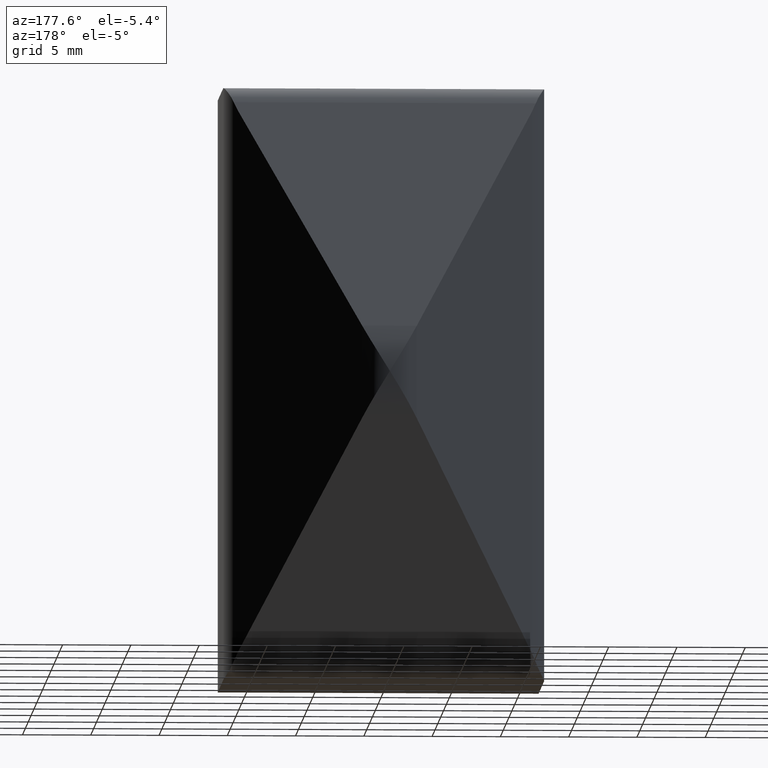
[diagram: clean part render]
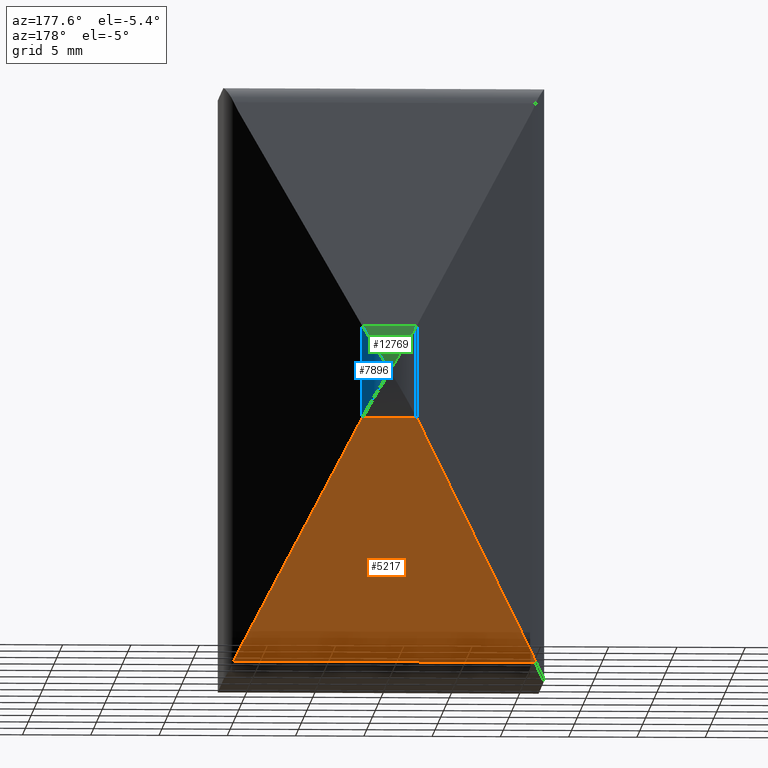
[diagram: same view with three faces highlighted in distinct colors, each labeled with its STEP entity id]
A machine part, auxiliary view with three faces highlighted in distinct colors.
Their STEP definitions:

[orange] entity #5217 — the highlighted planar face has unit normal (-0, 0.903, -0.4296).
#255 = VERTEX_POINT ( 'NONE', #1041 ) ;
#387 = DIRECTION ( 'NONE',  ( 0.4323533876262485309, -0.3873917184031406835, -0.8142470170168071286 ) ) ;
#607 = CARTESIAN_POINT ( 'NONE',  ( 10.75196038653900388, 11.89425061063080058, -19.87040150168149566 ) ) ;
#786 = LINE ( 'NONE', #9476, #9072 ) ;
#935 = EDGE_CURVE ( 'NONE', #13829, #255, #11167, .T. ) ;
#1041 = CARTESIAN_POINT ( 'NONE',  ( 10.75196038653900388, 11.89425061063080058, -19.87040150168149566 ) ) ;
#1139 = ORIENTED_EDGE ( 'NONE', *, *, #13612, .F. ) ;
#1680 = ORIENTED_EDGE ( 'NONE', *, *, #2969, .T. ) ;
#2867 = CARTESIAN_POINT ( 'NONE',  ( -11.05863124245042428, 11.57571989516164024, -20.53991164497543664 ) ) ;
#2969 = EDGE_CURVE ( 'NONE', #9142, #13829, #10925, .T. ) ;
#3164 = CARTESIAN_POINT ( 'NONE',  ( 2.001960386538957692, 19.73431300643590092, -3.391609840041818646 ) ) ;
#3308 = CARTESIAN_POINT ( 'NONE',  ( -11.05863124245042428, 11.57571989516164024, -20.53991164497543664 ) ) ;
#3565 = PLANE ( 'NONE',  #8973 ) ;
#4053 = DIRECTION ( 'NONE',  ( 0.4323533876262476427, 0.3873917184031417382, 0.8142470170168070176 ) ) ;
#4703 = EDGE_CURVE ( 'NONE', #11074, #10413, #9159, .T. ) ;
#5217 = ADVANCED_FACE ( 'NONE', ( #8211 ), #3565, .T. ) ;
#5591 = CARTESIAN_POINT ( 'NONE',  ( -10.96433925110757812, 11.68934733506094226, -20.30108154202269333 ) ) ;
#6569 = CARTESIAN_POINT ( 'NONE',  ( -10.75196038653899322, 11.89425061063079880, -19.87040150168144947 ) ) ;
#6720 = CARTESIAN_POINT ( 'NONE',  ( 3.900187984968730870, 25.02268003522675599, 7.723849973690928294 ) ) ;
#7445 = VECTOR ( 'NONE', #13193, 1000.000000000000000 ) ;
#7656 = EDGE_CURVE ( 'NONE', #10413, #9142, #15029, .T. ) ;
#8211 = FACE_OUTER_BOUND ( 'NONE', #14186, .T. ) ;
#8538 = VECTOR ( 'NONE', #4053, 1000.000000000000114 ) ;
#8973 = AXIS2_PLACEMENT_3D ( 'NONE', #13977, #9933, #12576 ) ;
#8997 = ORIENTED_EDGE ( 'NONE', *, *, #7656, .T. ) ;
#9072 = VECTOR ( 'NONE', #10614, 1000.000000000000000 ) ;
#9142 = VERTEX_POINT ( 'NONE', #15264 ) ;
#9159 =( BOUNDED_CURVE ( )  B_SPLINE_CURVE ( 3, ( #2867, #5591, #15985, #14582 ),
 .UNSPECIFIED., .F., .F. ) 
 B_SPLINE_CURVE_WITH_KNOTS ( ( 4, 4 ),
 ( 2.263466273850775590, 2.410987941729143103 ),
 .UNSPECIFIED. ) 
 CURVE ( )  GEOMETRIC_REPRESENTATION_ITEM ( )  RATIONAL_B_SPLINE_CURVE ( ( 1.000000000000000000, 0.9981872685538730749, 0.9981872685538730749, 1.000000000000000000 ) ) 
 REPRESENTATION_ITEM ( '' )  );
#9476 = CARTESIAN_POINT ( 'NONE',  ( -31.75000000000000000, 11.57571989516161359, -20.53991164497543664 ) ) ;
#9933 = DIRECTION ( 'NONE',  ( -1.236707980798851141E-15, 0.9030089634725728676, -0.4296217078875201878 ) ) ;
#10413 = VERTEX_POINT ( 'NONE', #6569 ) ;
#10614 = DIRECTION ( 'NONE',  ( 1.000000000000000000, 1.369541201499284725E-15, -0.000000000000000000 ) ) ;
#10925 = LINE ( 'NONE', #13302, #7445 ) ;
#11074 = VERTEX_POINT ( 'NONE', #3308 ) ;
#11167 = LINE ( 'NONE', #16253, #12148 ) ;
#11642 =( BOUNDED_CURVE ( )  B_SPLINE_CURVE ( 3, ( #607, #12246, #13528, #12573 ),
 .UNSPECIFIED., .F., .F. ) 
 B_SPLINE_CURVE_WITH_KNOTS ( ( 4, 4 ),
 ( 3.872197365450441353, 4.019719033328795987 ),
 .UNSPECIFIED. ) 
 CURVE ( )  GEOMETRIC_REPRESENTATION_ITEM ( )  RATIONAL_B_SPLINE_CURVE ( ( 1.000000000000000000, 0.9981872685538732970, 0.9981872685538732970, 1.000000000000000000 ) ) 
 REPRESENTATION_ITEM ( '' )  );
#11803 = ORIENTED_EDGE ( 'NONE', *, *, #4703, .T. ) ;
#12083 = EDGE_CURVE ( 'NONE', #255, #14320, #11642, .T. ) ;
#12148 = VECTOR ( 'NONE', #387, 1000.000000000000114 ) ;
#12217 = ORIENTED_EDGE ( 'NONE', *, *, #935, .T. ) ;
#12246 = CARTESIAN_POINT ( 'NONE',  ( 10.86192999198604170, 11.79571705996257869, -20.07750621222717768 ) ) ;
#12573 = CARTESIAN_POINT ( 'NONE',  ( 11.05863124245040297, 11.57571989516167221, -20.53991164497543664 ) ) ;
#12576 = DIRECTION ( 'NONE',  ( 0.000000000000000000, 0.4296217078875201323, 0.9030089634725727565 ) ) ;
#13193 = DIRECTION ( 'NONE',  ( 1.000000000000000000, 1.369541201499284725E-15, -0.000000000000000000 ) ) ;
#13302 = CARTESIAN_POINT ( 'NONE',  ( -31.75000000000001421, 19.73431300643585473, -3.391609840041818646 ) ) ;
#13528 = CARTESIAN_POINT ( 'NONE',  ( 10.96433925110756036, 11.68934733506096002, -20.30108154202271820 ) ) ;
#13612 = EDGE_CURVE ( 'NONE', #11074, #14320, #786, .T. ) ;
#13829 = VERTEX_POINT ( 'NONE', #3164 ) ;
#13965 = ORIENTED_EDGE ( 'NONE', *, *, #12083, .T. ) ;
#13977 = CARTESIAN_POINT ( 'NONE',  ( -31.75000000000001421, 17.40763857469484677, -8.281976942941218667 ) ) ;
#14186 = EDGE_LOOP ( 'NONE', ( #13965, #1139, #11803, #8997, #1680, #12217 ) ) ;
#14320 = VERTEX_POINT ( 'NONE', #16097 ) ;
#14582 = CARTESIAN_POINT ( 'NONE',  ( -10.75196038653899322, 11.89425061063079880, -19.87040150168144947 ) ) ;
#15029 = LINE ( 'NONE', #6720, #8538 ) ;
#15264 = CARTESIAN_POINT ( 'NONE',  ( -2.001960386538999437, 19.73431300643589736, -3.391609840041818646 ) ) ;
#15985 = CARTESIAN_POINT ( 'NONE',  ( -10.86192999198604880, 11.79571705996257158, -20.07750621222713505 ) ) ;
#16097 = CARTESIAN_POINT ( 'NONE',  ( 11.05863124245040297, 11.57571989516167221, -20.53991164497543664 ) ) ;
#16253 = CARTESIAN_POINT ( 'NONE',  ( -6.848953693662046760, 27.66479513771424337, 13.27723234769590377 ) ) ;

[blue] entity #7896 — the highlighted cylindrical surface (partial cylindrical patch) has radius 3 mm, axis along (-0, -0, -1).
#564 = B_SPLINE_CURVE_WITH_KNOTS ( 'NONE', 3,
 ( #15112, #4764, #7306, #2089, #15164, #4814, #6108, #7414, #15009, #7358 ),
 .UNSPECIFIED., .F., .F.,
 ( 4, 2, 2, 2, 4 ),
 ( 3.033596903630659663E-17, 0.002008214690735937984, 0.003012322036103891147, 0.003514375708787867945, 0.004016429381471844744 ),
 .UNSPECIFIED. ) ;
#714 = EDGE_LOOP ( 'NONE', ( #8080, #16198, #12009 ) ) ;
#2089 = CARTESIAN_POINT ( 'NONE',  ( 0.8794525775638991627, 20.37385668454999887, 1.435111459904103492 ) ) ;
#2445 = FACE_OUTER_BOUND ( 'NONE', #714, .T. ) ;
#2543 = CARTESIAN_POINT ( 'NONE',  ( 6.938893903907228378E-15, 20.50000000000001421, 0.000000000000000000 ) ) ;
#2762 = DIRECTION ( 'NONE',  ( -1.000000000000000000, 0.000000000000000000, 0.000000000000000000 ) ) ;
#3075 = CYLINDRICAL_SURFACE ( 'NONE', #10721, 2.999999999999983569 ) ;
#3143 = EDGE_CURVE ( 'NONE', #10902, #13829, #3383, .T. ) ;
#3164 = CARTESIAN_POINT ( 'NONE',  ( 2.001960386538957692, 19.73431300643590092, -3.391609840041818646 ) ) ;
#3197 = CARTESIAN_POINT ( 'NONE',  ( 1.708683536408604375, 19.99709115549502769, -2.839284341472623208 ) ) ;
#3383 = LINE ( 'NONE', #12031, #14724 ) ;
#4342 = DIRECTION ( 'NONE',  ( -0.000000000000000000, -0.000000000000000000, -1.000000000000000000 ) ) ;
#4764 = CARTESIAN_POINT ( 'NONE',  ( 1.708670235789605973, 19.99710307294450473, 2.839259292543544255 ) ) ;
#4814 = CARTESIAN_POINT ( 'NONE',  ( 0.4428145847685490688, 20.46848357272658703, 0.7193807618032050932 ) ) ;
#6031 = CARTESIAN_POINT ( 'NONE',  ( 6.938893903907228378E-15, 20.50000000000001421, 0.000000000000000000 ) ) ;
#6108 = CARTESIAN_POINT ( 'NONE',  ( 0.3544725665644347101, 20.48030971423603219, 0.5755462237044823848 ) ) ;
#6171 = EDGE_CURVE ( 'NONE', #10902, #13407, #564, .T. ) ;
#6668 = CARTESIAN_POINT ( 'NONE',  ( 2.001960386538978565, 19.73431300643590092, 3.391609840041818646 ) ) ;
#7306 = CARTESIAN_POINT ( 'NONE',  ( 1.386104246404666229, 20.18489689488539085, 2.282767628651714453 ) ) ;
#7358 = CARTESIAN_POINT ( 'NONE',  ( 6.938893903907228378E-15, 20.50000000000001421, 0.000000000000000000 ) ) ;
#7414 = CARTESIAN_POINT ( 'NONE',  ( 0.1774445492764699928, 20.49606579119159377, 0.2878468810430003799 ) ) ;
#7896 = ADVANCED_FACE ( 'NONE', ( #2445 ), #3075, .T. ) ;
#8080 = ORIENTED_EDGE ( 'NONE', *, *, #15669, .F. ) ;
#8418 = CARTESIAN_POINT ( 'NONE',  ( 2.001960386538957692, 19.73431300643590092, -3.391609840041818646 ) ) ;
#9787 = CARTESIAN_POINT ( 'NONE',  ( 0.3548970466640813948, 20.49999999999999289, -0.5757075079573179544 ) ) ;
#9901 = CARTESIAN_POINT ( 'NONE',  ( 0.7106314167773718493, 20.43682617521437095, -1.152662686884855958 ) ) ;
#10721 = AXIS2_PLACEMENT_3D ( 'NONE', #13241, #14530, #2762 ) ;
#10902 = VERTEX_POINT ( 'NONE', #6668 ) ;
#11217 = CARTESIAN_POINT ( 'NONE',  ( 1.386133423374645401, 20.18487972291850951, -2.282818109112700444 ) ) ;
#12009 = ORIENTED_EDGE ( 'NONE', *, *, #3143, .T. ) ;
#12031 = CARTESIAN_POINT ( 'NONE',  ( 2.001960386538998993, 19.73431300643589026, 21.75000000000000000 ) ) ;
#13241 = CARTESIAN_POINT ( 'NONE',  ( 1.041604361617444476E-14, 17.50000000000000355, 21.75000000000000000 ) ) ;
#13407 = VERTEX_POINT ( 'NONE', #2543 ) ;
#13829 = VERTEX_POINT ( 'NONE', #3164 ) ;
#14020 = B_SPLINE_CURVE_WITH_KNOTS ( 'NONE', 3,
 ( #6031, #9787, #9901, #11217, #3197, #8418 ),
 .UNSPECIFIED., .F., .F.,
 ( 4, 2, 4 ),
 ( -1.777010421629427657E-05, 0.002011149977497620010, 0.004040070059211534753 ),
 .UNSPECIFIED. ) ;
#14530 = DIRECTION ( 'NONE',  ( -0.000000000000000000, -0.000000000000000000, -1.000000000000000000 ) ) ;
#14724 = VECTOR ( 'NONE', #4342, 1000.000000000000000 ) ;
#15009 = CARTESIAN_POINT ( 'NONE',  ( 0.08781881913845152043, 20.50000000000000355, 0.1424580846563213432 ) ) ;
#15112 = CARTESIAN_POINT ( 'NONE',  ( 2.001960386538978565, 19.73431300643590092, 3.391609840041818646 ) ) ;
#15164 = CARTESIAN_POINT ( 'NONE',  ( 0.7065714013375307134, 20.42107424878888366, 1.150432220180276577 ) ) ;
#15669 = EDGE_CURVE ( 'NONE', #13407, #13829, #14020, .T. ) ;
#16198 = ORIENTED_EDGE ( 'NONE', *, *, #6171, .F. ) ;

[green] entity #12769 — the highlighted cylindrical surface (partial cylindrical patch) has radius 7.8944 mm, axis along (1, 0, -0).
#60 = CARTESIAN_POINT ( 'NONE',  ( -31.75000000000001421, 19.73431300643585473, 3.391609840041818646 ) ) ;
#564 = B_SPLINE_CURVE_WITH_KNOTS ( 'NONE', 3,
 ( #15112, #4764, #7306, #2089, #15164, #4814, #6108, #7414, #15009, #7358 ),
 .UNSPECIFIED., .F., .F.,
 ( 4, 2, 2, 2, 4 ),
 ( 3.033596903630659663E-17, 0.002008214690735937984, 0.003012322036103891147, 0.003514375708787867945, 0.004016429381471844744 ),
 .UNSPECIFIED. ) ;
#626 = VERTEX_POINT ( 'NONE', #4223 ) ;
#2089 = CARTESIAN_POINT ( 'NONE',  ( 0.8794525775638991627, 20.37385668454999887, 1.435111459904103492 ) ) ;
#2543 = CARTESIAN_POINT ( 'NONE',  ( 6.938893903907228378E-15, 20.50000000000001421, 0.000000000000000000 ) ) ;
#2777 = CARTESIAN_POINT ( 'NONE',  ( -1.386133423374631191, 20.18487972291850951, 2.282818109112696447 ) ) ;
#2804 = DIRECTION ( 'NONE',  ( -1.757925935142449636E-15, 1.000000000000000000, 0.000000000000000000 ) ) ;
#4223 = CARTESIAN_POINT ( 'NONE',  ( -2.001960386538997660, 19.73431300643589736, 3.391609840041818202 ) ) ;
#4764 = CARTESIAN_POINT ( 'NONE',  ( 1.708670235789605973, 19.99710307294450473, 2.839259292543544255 ) ) ;
#4814 = CARTESIAN_POINT ( 'NONE',  ( 0.4428145847685490688, 20.46848357272658703, 0.7193807618032050932 ) ) ;
#5041 = FACE_OUTER_BOUND ( 'NONE', #7613, .T. ) ;
#5149 = B_SPLINE_CURVE_WITH_KNOTS ( 'NONE', 3,
 ( #5274, #14321, #9361, #2777, #6581, #9530 ),
 .UNSPECIFIED., .F., .F.,
 ( 4, 2, 4 ),
 ( -1.777010421629403601E-05, 0.002011149977497616974, 0.004040070059211526947 ),
 .UNSPECIFIED. ) ;
#5274 = CARTESIAN_POINT ( 'NONE',  ( 6.938893903907228378E-15, 20.50000000000001421, 0.000000000000000000 ) ) ;
#5283 = ORIENTED_EDGE ( 'NONE', *, *, #16401, .T. ) ;
#6108 = CARTESIAN_POINT ( 'NONE',  ( 0.3544725665644347101, 20.48030971423603219, 0.5755462237044823848 ) ) ;
#6171 = EDGE_CURVE ( 'NONE', #10902, #13407, #564, .T. ) ;
#6581 = CARTESIAN_POINT ( 'NONE',  ( -1.708683536408590831, 19.99709115549502059, 2.839284341472616102 ) ) ;
#6668 = CARTESIAN_POINT ( 'NONE',  ( 2.001960386538978565, 19.73431300643590092, 3.391609840041818646 ) ) ;
#7306 = CARTESIAN_POINT ( 'NONE',  ( 1.386104246404666229, 20.18489689488539085, 2.282767628651714453 ) ) ;
#7358 = CARTESIAN_POINT ( 'NONE',  ( 6.938893903907228378E-15, 20.50000000000001421, 0.000000000000000000 ) ) ;
#7414 = CARTESIAN_POINT ( 'NONE',  ( 0.1774445492764699928, 20.49606579119159377, 0.2878468810430003799 ) ) ;
#7613 = EDGE_LOOP ( 'NONE', ( #14870, #12036, #5283 ) ) ;
#8188 = VECTOR ( 'NONE', #10411, 1000.000000000000000 ) ;
#8482 = CYLINDRICAL_SURFACE ( 'NONE', #9118, 7.894409844229245188 ) ;
#9118 = AXIS2_PLACEMENT_3D ( 'NONE', #15820, #10648, #2804 ) ;
#9361 = CARTESIAN_POINT ( 'NONE',  ( -0.7106314167773610802, 20.43682617521437450, 1.152662686884853738 ) ) ;
#9530 = CARTESIAN_POINT ( 'NONE',  ( -2.001960386538997660, 19.73431300643589736, 3.391609840041818202 ) ) ;
#10411 = DIRECTION ( 'NONE',  ( 1.000000000000000000, 1.369541201499284725E-15, -0.000000000000000000 ) ) ;
#10648 = DIRECTION ( 'NONE',  ( 1.000000000000000000, 1.369541201499284725E-15, -0.000000000000000000 ) ) ;
#10902 = VERTEX_POINT ( 'NONE', #6668 ) ;
#12036 = ORIENTED_EDGE ( 'NONE', *, *, #15218, .T. ) ;
#12769 = ADVANCED_FACE ( 'NONE', ( #5041 ), #8482, .T. ) ;
#13407 = VERTEX_POINT ( 'NONE', #2543 ) ;
#14267 = LINE ( 'NONE', #60, #8188 ) ;
#14321 = CARTESIAN_POINT ( 'NONE',  ( -0.3548970466636522381, 20.50000000000000000, 0.5757075079575746379 ) ) ;
#14870 = ORIENTED_EDGE ( 'NONE', *, *, #6171, .T. ) ;
#15009 = CARTESIAN_POINT ( 'NONE',  ( 0.08781881913845152043, 20.50000000000000355, 0.1424580846563213432 ) ) ;
#15112 = CARTESIAN_POINT ( 'NONE',  ( 2.001960386538978565, 19.73431300643590092, 3.391609840041818646 ) ) ;
#15164 = CARTESIAN_POINT ( 'NONE',  ( 0.7065714013375307134, 20.42107424878888366, 1.150432220180276577 ) ) ;
#15218 = EDGE_CURVE ( 'NONE', #13407, #626, #5149, .T. ) ;
#15820 = CARTESIAN_POINT ( 'NONE',  ( -31.75000000000000000, 12.60559015577072373, 0.000000000000000000 ) ) ;
#16401 = EDGE_CURVE ( 'NONE', #626, #10902, #14267, .T. ) ;